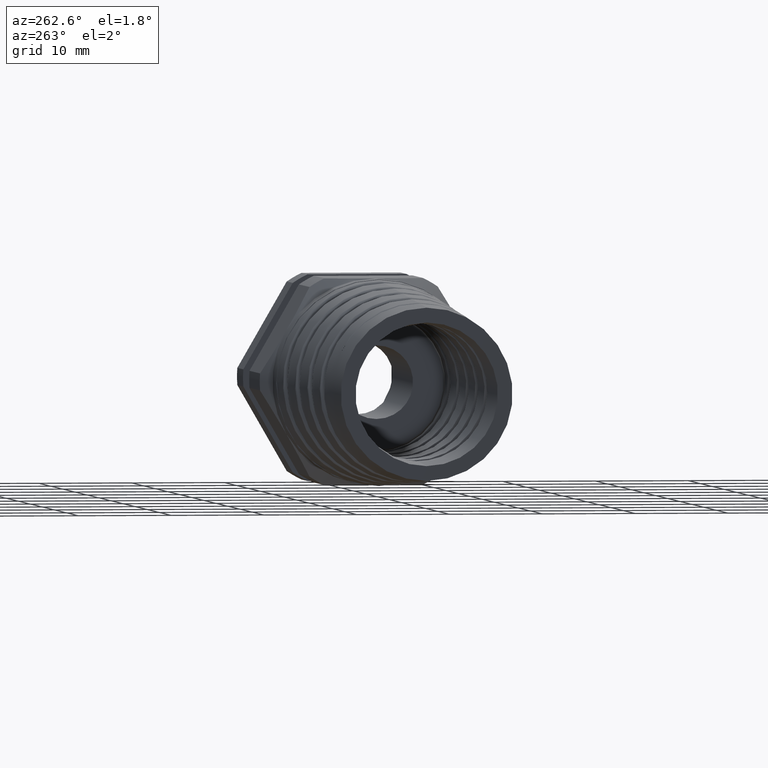
[diagram: clean part render]
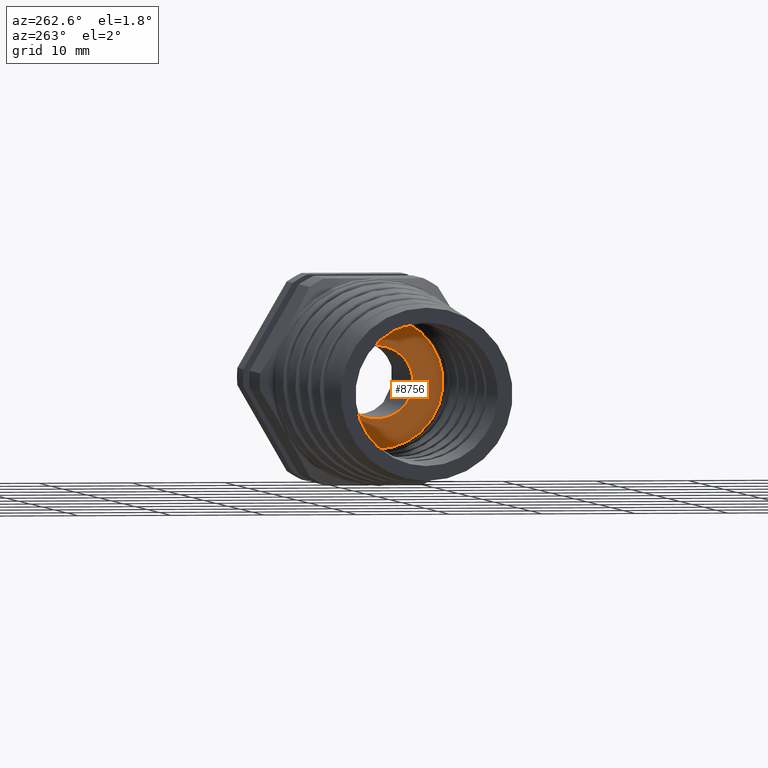
[diagram: same view with one face highlighted and labeled with its STEP entity id]
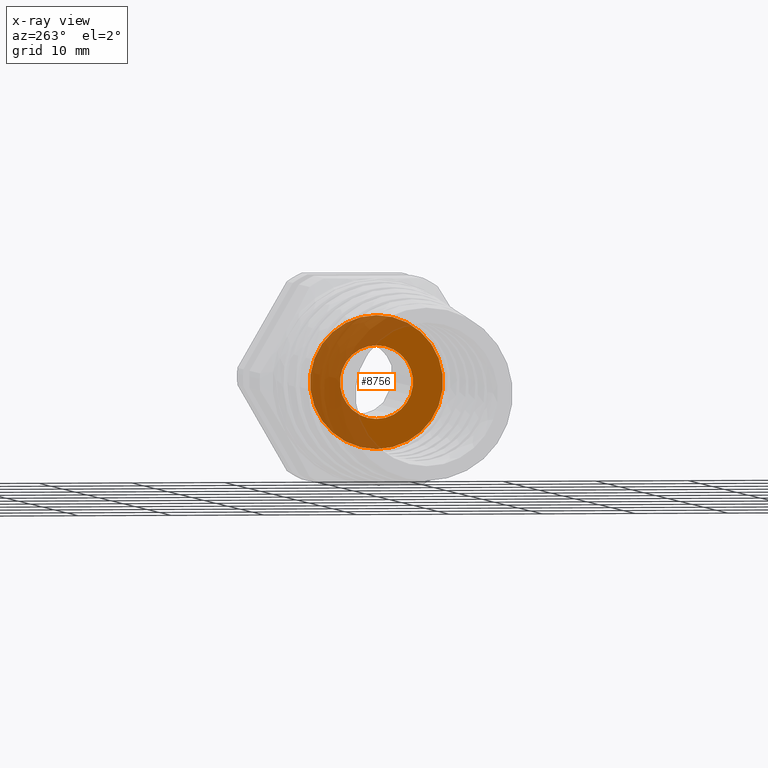
[diagram: x-ray of the same camera — body ghosted, the highlighted face saturated]
A machine part, auxiliary view. The second image highlights one B-rep face of the part: STEP entity #8756.
The next image is the same camera in x-ray: the body ghosted, the highlighted face saturated — about 52% of this face is hidden behind the body in this view.
In plain terms, the highlighted planar face has unit normal (-1, 0, 0).
Its self-contained STEP definition (entity closure, byte-faithful):
#22 = ORIENTED_EDGE ( 'NONE', *, *, #8747, .T. ) ;
#24 = EDGE_LOOP ( 'NONE', ( #669, #676 ) ) ;
#283 = EDGE_CURVE ( 'NONE', #8741, #8731, #1519, .T. ) ;
#285 = ORIENTED_EDGE ( 'NONE', *, *, #283, .T. ) ;
#378 = VERTEX_POINT ( 'NONE', #2010 ) ;
#380 = VERTEX_POINT ( 'NONE', #2009 ) ;
#381 = EDGE_CURVE ( 'NONE', #378, #380, #2007, .T. ) ;
#666 = EDGE_CURVE ( 'NONE', #380, #378, #2308, .T. ) ;
#669 = ORIENTED_EDGE ( 'NONE', *, *, #381, .F. ) ;
#676 = ORIENTED_EDGE ( 'NONE', *, *, #666, .F. ) ;
#1516 = DIRECTION ( 'NONE',  ( 0.0000000000000000000, 0.0000000000000000000, -1.000000000000000000 ) ) ;
#1517 = DIRECTION ( 'NONE',  ( 1.000000000000000000, 0.0000000000000000000, 0.0000000000000000000 ) ) ;
#1518 = AXIS2_PLACEMENT_3D ( 'NONE', #1524, #1517, #1516 ) ;
#1519 = CIRCLE ( 'NONE', #1518, 0.1550000000000000000 ) ;
#1524 = CARTESIAN_POINT ( 'NONE',  ( -1.150000000000000100, 0.0000000000000000000, 0.0000000000000000000 ) ) ;
#2003 = DIRECTION ( 'NONE',  ( 0.0000000000000000000, 0.0000000000000000000, -1.000000000000000000 ) ) ;
#2004 = DIRECTION ( 'NONE',  ( 1.000000000000000000, 0.0000000000000000000, 0.0000000000000000000 ) ) ;
#2005 = CARTESIAN_POINT ( 'NONE',  ( -1.150000000000000100, 0.0000000000000000000, 0.0000000000000000000 ) ) ;
#2006 = AXIS2_PLACEMENT_3D ( 'NONE', #2005, #2004, #2003 ) ;
#2007 = CIRCLE ( 'NONE', #2006, 0.2819999999999999700 ) ;
#2009 = CARTESIAN_POINT ( 'NONE',  ( -1.150000000000000100, 3.514736313552903300E-017, 0.2819999999999999700 ) ) ;
#2010 = CARTESIAN_POINT ( 'NONE',  ( -1.150000000000000100, 0.0000000000000000000, -0.2819999999999999700 ) ) ;
#2304 = DIRECTION ( 'NONE',  ( 0.0000000000000000000, 0.0000000000000000000, -1.000000000000000000 ) ) ;
#2305 = DIRECTION ( 'NONE',  ( 1.000000000000000000, 0.0000000000000000000, 0.0000000000000000000 ) ) ;
#2306 = CARTESIAN_POINT ( 'NONE',  ( -1.150000000000000100, 0.0000000000000000000, 0.0000000000000000000 ) ) ;
#2307 = AXIS2_PLACEMENT_3D ( 'NONE', #2306, #2305, #2304 ) ;
#2308 = CIRCLE ( 'NONE', #2307, 0.2819999999999999700 ) ;
#6015 = DIRECTION ( 'NONE',  ( 1.000000000000000000, 0.0000000000000000000, 0.0000000000000000000 ) ) ;
#6016 = CARTESIAN_POINT ( 'NONE',  ( -1.150000000000000100, 0.0000000000000000000, 0.0000000000000000000 ) ) ;
#6017 = AXIS2_PLACEMENT_3D ( 'NONE', #6016, #6015, #6076 ) ;
#6018 = CIRCLE ( 'NONE', #6017, 0.1550000000000000000 ) ;
#6029 = CARTESIAN_POINT ( 'NONE',  ( -1.150000000000000100, 0.0000000000000000000, -0.1550000000000000000 ) ) ;
#6042 = CARTESIAN_POINT ( 'NONE',  ( -1.150000000000000100, 1.898202538678397300E-017, 0.1550000000000000000 ) ) ;
#6048 = DIRECTION ( 'NONE',  ( 0.0000000000000000000, 0.0000000000000000000, 1.000000000000000000 ) ) ;
#6049 = DIRECTION ( 'NONE',  ( -1.000000000000000000, 0.0000000000000000000, 0.0000000000000000000 ) ) ;
#6050 = CARTESIAN_POINT ( 'NONE',  ( -1.150000000000000100, 0.2819999999999999700, 0.0000000000000000000 ) ) ;
#6051 = AXIS2_PLACEMENT_3D ( 'NONE', #6050, #6049, #6048 ) ;
#6052 = PLANE ( 'NONE',  #6051 ) ;
#6053 = FACE_OUTER_BOUND ( 'NONE', #24, .T. ) ;
#6054 = FACE_BOUND ( 'NONE', #8732, .T. ) ;
#6076 = DIRECTION ( 'NONE',  ( 0.0000000000000000000, 0.0000000000000000000, -1.000000000000000000 ) ) ;
#8731 = VERTEX_POINT ( 'NONE', #6042 ) ;
#8732 = EDGE_LOOP ( 'NONE', ( #285, #22 ) ) ;
#8741 = VERTEX_POINT ( 'NONE', #6029 ) ;
#8747 = EDGE_CURVE ( 'NONE', #8731, #8741, #6018, .T. ) ;
#8756 = ADVANCED_FACE ( 'NONE', ( #6054, #6053 ), #6052, .T. ) ;